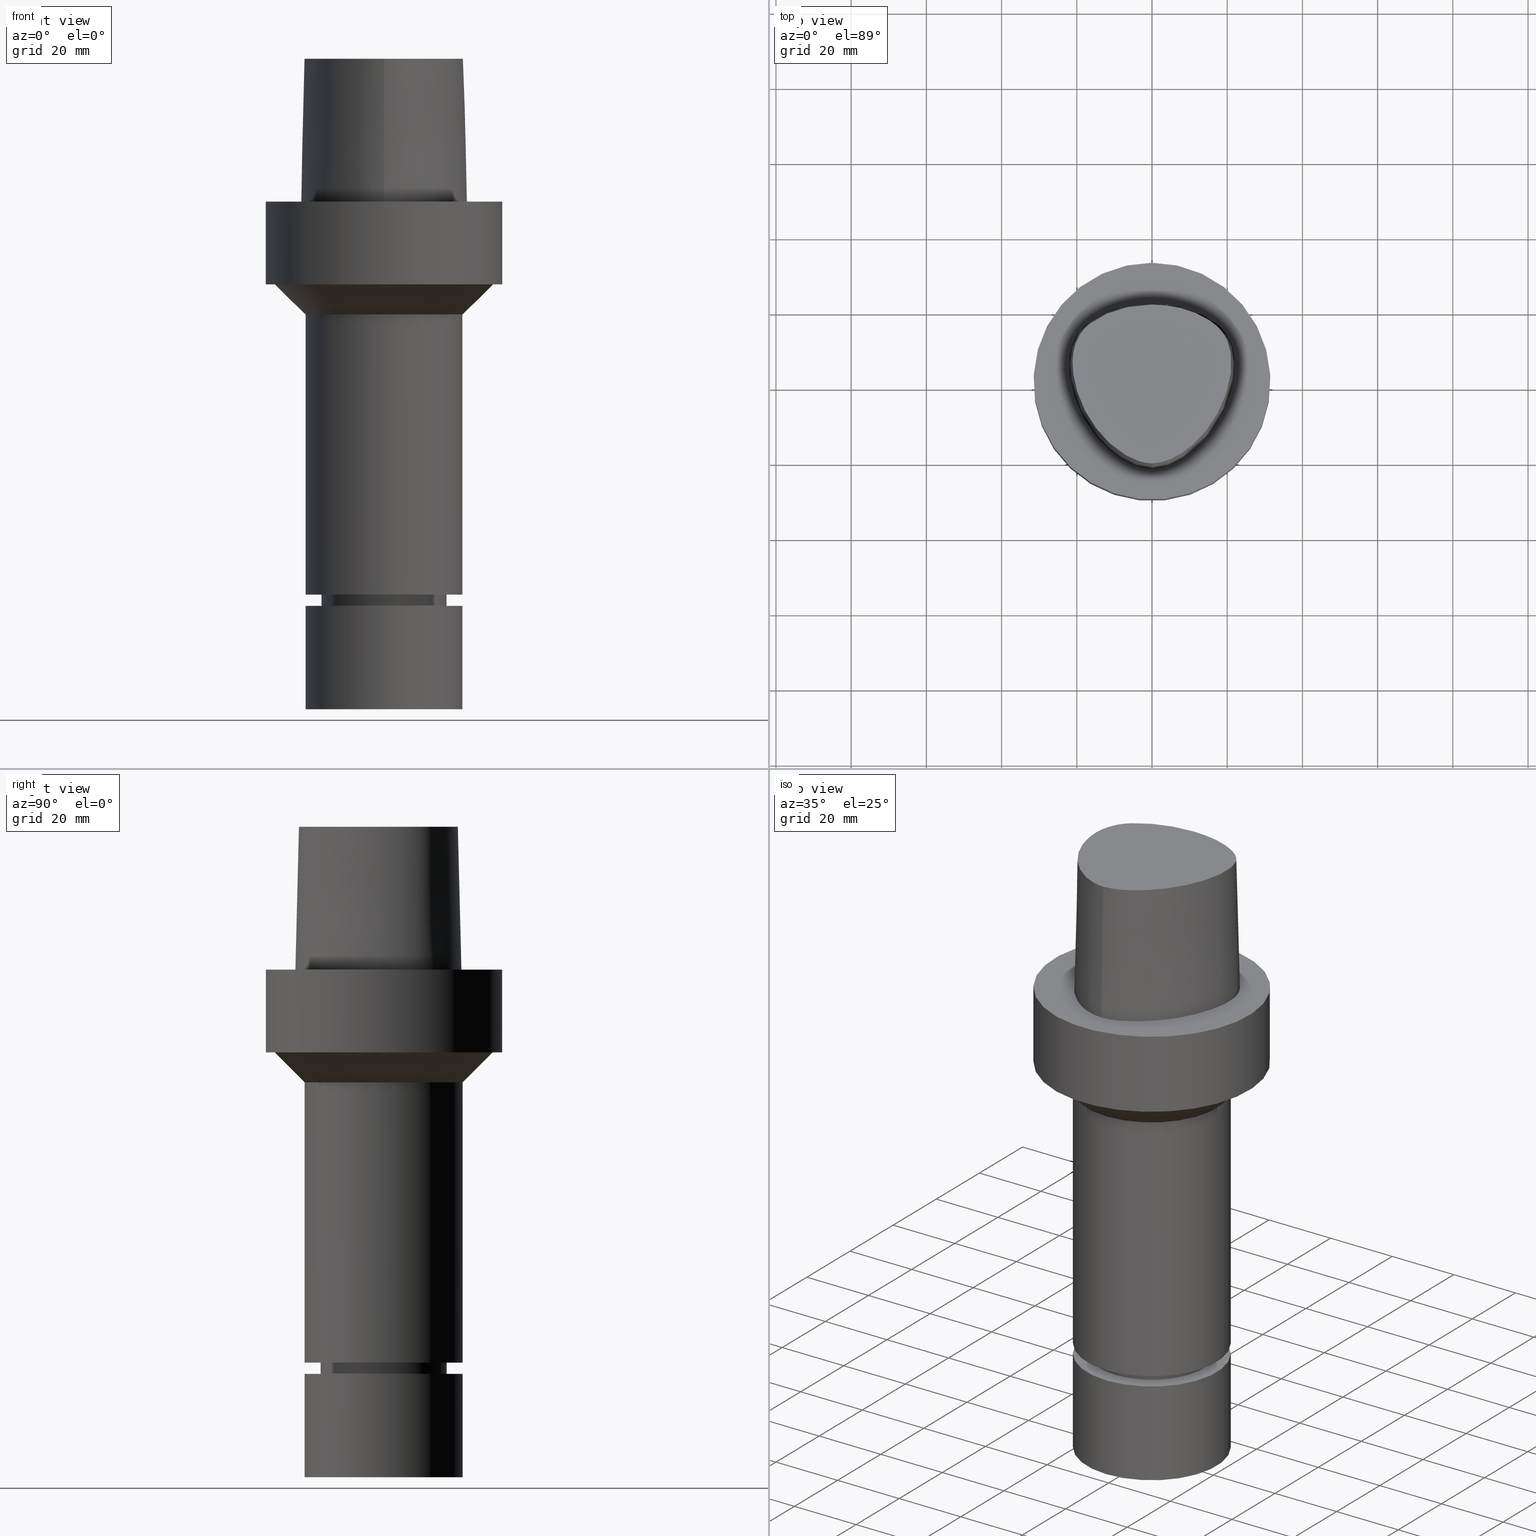
[diagram: canonical four-view strip — front | top / right | iso, engineering-drawing reading convention]
A machine part, canonical four-view strip (front | top / right | iso — engineering-drawing reading convention). The complete STEP part file that produces these views, byte-faithful:
ISO-10303-21;
HEADER;
FILE_DESCRIPTION((''),'1');
FILE_NAME('V:/90_\X2\53D65F9730C730FC30BF\X0\/00_\X2\6DE18DEF30C730FC30BF\X0\/ALL/CAPTO-BKUS\X2\52A05DE556F3\X0\_201801/C6-MEGAER/C6-MEGAER25-135NL.stp','2018-02-01T08:40:52',(''),(''),'Spatial Interop R21 SP3','Kubotek KeyCreator 2011 V10.0.2 (22737)',' ');
FILE_SCHEMA(('automotive_design'));
ENDSEC;
DATA;
#1=MECHANICAL_DESIGN_GEOMETRIC_PRESENTATION_REPRESENTATION(' ',(#14,#15,#16,#17,#18,#19,#20,#21,#22,#23,#24,#25,#26,#27,#28,#29,#30,#31,#32,#33,#34,#35,#36,#37,#38,#39,#40,#41,#42,#43,#44,#45,#46,#47,#48,#49,#50,#51,#52,#53),#10);
#2=PRODUCT_DEFINITION_CONTEXT('',#54,'design');
#3=APPLICATION_PROTOCOL_DEFINITION('INTERNATIONAL STANDARD','automotive_design',1994,#54);
#4=PRODUCT_CATEGORY_RELATIONSHIP('NONE','NONE',#55,#56);
#5=SHAPE_DEFINITION_REPRESENTATION(#57,#58);
#6=PRODUCT_DEFINITION_CONTEXT('',#59,'design');
#7=APPLICATION_PROTOCOL_DEFINITION('INTERNATIONAL STANDARD','automotive_design',1994,#59);
#8=PRODUCT_CATEGORY_RELATIONSHIP('NONE','NONE',#60,#61);
#9=SHAPE_DEFINITION_REPRESENTATION(#62,#63);
#10= (GEOMETRIC_REPRESENTATION_CONTEXT(3)GLOBAL_UNCERTAINTY_ASSIGNED_CONTEXT((#66))GLOBAL_UNIT_ASSIGNED_CONTEXT((#68,#69,#70))REPRESENTATION_CONTEXT('NONE','WORKSPACE'));
#14=STYLED_ITEM('',(#72),#73);
#15=STYLED_ITEM('',(#74),#75);
#16=STYLED_ITEM('',(#76,#77),#78);
#17=STYLED_ITEM('',(#79),#80);
#18=STYLED_ITEM('',(#81,#82),#83);
#19=STYLED_ITEM('',(#84),#85);
#20=STYLED_ITEM('',(#86,#87),#88);
#21=STYLED_ITEM('',(#89,#90),#91);
#22=STYLED_ITEM('',(#92),#93);
#23=STYLED_ITEM('',(#94,#95),#96);
#24=STYLED_ITEM('',(#97,#98),#99);
#25=STYLED_ITEM('',(#100),#101);
#26=STYLED_ITEM('',(#102,#103),#104);
#27=STYLED_ITEM('',(#105,#106),#107);
#28=STYLED_ITEM('',(#108),#109);
#29=STYLED_ITEM('',(#110),#111);
#30=STYLED_ITEM('',(#112),#113);
#31=STYLED_ITEM('',(#114,#115),#116);
#32=STYLED_ITEM('',(#117),#118);
#33=STYLED_ITEM('',(#119),#120);
#34=STYLED_ITEM('',(#121),#122);
#35=STYLED_ITEM('',(#123,#124),#125);
#36=STYLED_ITEM('',(#126,#127),#128);
#37=STYLED_ITEM('',(#129),#130);
#38=STYLED_ITEM('',(#131,#132),#133);
#39=STYLED_ITEM('',(#134,#135),#136);
#40=STYLED_ITEM('',(#137,#138),#139);
#41=STYLED_ITEM('',(#140),#141);
#42=STYLED_ITEM('',(#142,#143),#144);
#43=STYLED_ITEM('',(#145),#146);
#44=STYLED_ITEM('',(#147),#148);
#45=STYLED_ITEM('',(#149,#150),#151);
#46=STYLED_ITEM('',(#152),#153);
#47=STYLED_ITEM('',(#154,#155),#156);
#48=STYLED_ITEM('',(#157),#158);
#49=STYLED_ITEM('',(#159),#160);
#50=STYLED_ITEM('',(#161),#162);
#51=STYLED_ITEM('',(#163,#164),#165);
#52=STYLED_ITEM('',(#166,#167),#168);
#53=STYLED_ITEM('',(#169,#170),#171);
#54=APPLICATION_CONTEXT(' ');
#55=PRODUCT_CATEGORY('part','NONE');
#56=PRODUCT_RELATED_PRODUCT_CATEGORY('detail',' ',(#172));
#57=PRODUCT_DEFINITION_SHAPE('NONE','NONE',#173);
#58=ADVANCED_BREP_SHAPE_REPRESENTATION('Unnamed[1]',(#139,#174),#10);
#59=APPLICATION_CONTEXT(' ');
#60=PRODUCT_CATEGORY('part','NONE');
#61=PRODUCT_RELATED_PRODUCT_CATEGORY('detail',' ',(#175));
#62=PRODUCT_DEFINITION_SHAPE('NONE','NONE',#176);
#63=ADVANCED_BREP_SHAPE_REPRESENTATION('Unnamed[1]',(#128,#177),#10);
#66=UNCERTAINTY_MEASURE_WITH_UNIT(LENGTH_MEASURE(1.0E-006),#68,'','');
#68= (CONVERSION_BASED_UNIT('MILLIMETRE',#180)LENGTH_UNIT()NAMED_UNIT(#183));
#69= (NAMED_UNIT(#185)PLANE_ANGLE_UNIT()SI_UNIT($,.RADIAN.));
#70= (NAMED_UNIT(#185)SOLID_ANGLE_UNIT()SI_UNIT($,.STERADIAN.));
#72=PRESENTATION_STYLE_ASSIGNMENT((#191));
#73=EDGE_CURVE('Unnamed[1]',#192,#192,#193,.T.);
#74=PRESENTATION_STYLE_ASSIGNMENT((#194));
#75=EDGE_CURVE('Unnamed[1]',#195,#196,#197,.T.);
#76=PRESENTATION_STYLE_ASSIGNMENT((#198));
#77=PRESENTATION_STYLE_ASSIGNMENT((#199));
#78=ADVANCED_FACE('Unnamed[1]',(#200),#201,.T.);
#79=PRESENTATION_STYLE_ASSIGNMENT((#202));
#80=EDGE_CURVE('Unnamed[1]',#203,#204,#205,.T.);
#81=PRESENTATION_STYLE_ASSIGNMENT((#206));
#82=PRESENTATION_STYLE_ASSIGNMENT((#207));
#83=ADVANCED_FACE('Unnamed[1]',(#208),#209,.T.);
#84=PRESENTATION_STYLE_ASSIGNMENT((#210));
#85=EDGE_CURVE('Unnamed[1]',#211,#204,#212,.T.);
#86=PRESENTATION_STYLE_ASSIGNMENT((#213));
#87=PRESENTATION_STYLE_ASSIGNMENT((#214));
#88=ADVANCED_FACE('Unnamed[1]',(#215,#216),#217,.T.);
#89=PRESENTATION_STYLE_ASSIGNMENT((#218));
#90=PRESENTATION_STYLE_ASSIGNMENT((#219));
#91=ADVANCED_FACE('Unnamed[1]',(#220,#221),#222,.T.);
#92=PRESENTATION_STYLE_ASSIGNMENT((#223));
#93=EDGE_CURVE('Unnamed[1]',#224,#224,#225,.T.);
#94=PRESENTATION_STYLE_ASSIGNMENT((#226));
#95=PRESENTATION_STYLE_ASSIGNMENT((#227));
#96=ADVANCED_FACE('Unnamed[1]',(#228,#229),#230,.T.);
#97=PRESENTATION_STYLE_ASSIGNMENT((#231));
#98=PRESENTATION_STYLE_ASSIGNMENT((#232));
#99=ADVANCED_FACE('Unnamed[1]',(#233),#234,.T.);
#100=PRESENTATION_STYLE_ASSIGNMENT((#235));
#101=EDGE_CURVE('Unnamed[1]',#195,#203,#236,.T.);
#102=PRESENTATION_STYLE_ASSIGNMENT((#237));
#103=PRESENTATION_STYLE_ASSIGNMENT((#238));
#104=ADVANCED_FACE('Unnamed[1]',(#239,#240),#241,.T.);
#105=PRESENTATION_STYLE_ASSIGNMENT((#242));
#106=PRESENTATION_STYLE_ASSIGNMENT((#243));
#107=ADVANCED_FACE('Unnamed[1]',(#244,#245),#246,.T.);
#108=PRESENTATION_STYLE_ASSIGNMENT((#247));
#109=EDGE_CURVE('Unnamed[1]',#248,#248,#249,.T.);
#110=PRESENTATION_STYLE_ASSIGNMENT((#250));
#111=EDGE_CURVE('Unnamed[1]',#196,#211,#251,.T.);
#112=PRESENTATION_STYLE_ASSIGNMENT((#252));
#113=EDGE_CURVE('Unnamed[1]',#253,#253,#254,.T.);
#114=PRESENTATION_STYLE_ASSIGNMENT((#255));
#115=PRESENTATION_STYLE_ASSIGNMENT((#256));
#116=ADVANCED_FACE('Unnamed[1]',(#257,#258),#259,.T.);
#117=PRESENTATION_STYLE_ASSIGNMENT((#260));
#118=EDGE_CURVE('Unnamed[1]',#261,#261,#262,.T.);
#119=PRESENTATION_STYLE_ASSIGNMENT((#263));
#120=EDGE_CURVE('Unnamed[1]',#264,#264,#265,.T.);
#121=PRESENTATION_STYLE_ASSIGNMENT((#266));
#122=EDGE_CURVE('Unnamed[1]',#267,#267,#268,.T.);
#123=PRESENTATION_STYLE_ASSIGNMENT((#269));
#124=PRESENTATION_STYLE_ASSIGNMENT((#270));
#125=ADVANCED_FACE('Unnamed[1]',(#271,#272),#273,.T.);
#126=PRESENTATION_STYLE_ASSIGNMENT((#274));
#127=PRESENTATION_STYLE_ASSIGNMENT((#275));
#128=MANIFOLD_SOLID_BREP('Unnamed[1]',#276);
#129=PRESENTATION_STYLE_ASSIGNMENT((#277));
#130=EDGE_CURVE('Unnamed[1]',#278,#278,#279,.T.);
#131=PRESENTATION_STYLE_ASSIGNMENT((#280));
#132=PRESENTATION_STYLE_ASSIGNMENT((#281));
#133=ADVANCED_FACE('Unnamed[1]',(#282),#283,.T.);
#134=PRESENTATION_STYLE_ASSIGNMENT((#284));
#135=PRESENTATION_STYLE_ASSIGNMENT((#285));
#136=ADVANCED_FACE('Unnamed[1]',(#286,#287),#288,.T.);
#137=PRESENTATION_STYLE_ASSIGNMENT((#289));
#138=PRESENTATION_STYLE_ASSIGNMENT((#290));
#139=MANIFOLD_SOLID_BREP('Unnamed[1]',#291);
#140=PRESENTATION_STYLE_ASSIGNMENT((#292));
#141=EDGE_CURVE('Unnamed[1]',#293,#293,#294,.T.);
#142=PRESENTATION_STYLE_ASSIGNMENT((#295));
#143=PRESENTATION_STYLE_ASSIGNMENT((#296));
#144=ADVANCED_FACE('Unnamed[1]',(#297),#298,.T.);
#145=PRESENTATION_STYLE_ASSIGNMENT((#299));
#146=EDGE_CURVE('Unnamed[1]',#300,#300,#301,.T.);
#147=PRESENTATION_STYLE_ASSIGNMENT((#302));
#148=EDGE_CURVE('Unnamed[1]',#303,#303,#304,.T.);
#149=PRESENTATION_STYLE_ASSIGNMENT((#305));
#150=PRESENTATION_STYLE_ASSIGNMENT((#306));
#151=ADVANCED_FACE('Unnamed[1]',(#307,#308),#309,.T.);
#152=PRESENTATION_STYLE_ASSIGNMENT((#310));
#153=EDGE_CURVE('Unnamed[1]',#203,#211,#311,.T.);
#154=PRESENTATION_STYLE_ASSIGNMENT((#312));
#155=PRESENTATION_STYLE_ASSIGNMENT((#313));
#156=ADVANCED_FACE('Unnamed[1]',(#314,#315),#316,.T.);
#157=PRESENTATION_STYLE_ASSIGNMENT((#317));
#158=EDGE_CURVE('Unnamed[1]',#203,#195,#318,.T.);
#159=PRESENTATION_STYLE_ASSIGNMENT((#319));
#160=EDGE_CURVE('Unnamed[1]',#204,#196,#320,.T.);
#161=PRESENTATION_STYLE_ASSIGNMENT((#321));
#162=EDGE_CURVE('Unnamed[1]',#322,#322,#323,.T.);
#163=PRESENTATION_STYLE_ASSIGNMENT((#324));
#164=PRESENTATION_STYLE_ASSIGNMENT((#325));
#165=ADVANCED_FACE('Unnamed[1]',(#326),#327,.T.);
#166=PRESENTATION_STYLE_ASSIGNMENT((#328));
#167=PRESENTATION_STYLE_ASSIGNMENT((#329));
#168=ADVANCED_FACE('Unnamed[1]',(#330,#331),#332,.T.);
#169=PRESENTATION_STYLE_ASSIGNMENT((#333));
#170=PRESENTATION_STYLE_ASSIGNMENT((#334));
#171=ADVANCED_FACE('Unnamed[1]',(#335),#336,.T.);
#172=PRODUCT('Unnamed[1]','Unnamed[1]','PART-Unnamed[1]-DESC',(#337));
#173=PRODUCT_DEFINITION('NONE','NONE',#338,#2);
#174=AXIS2_PLACEMENT_3D('',#339,#340,#341);
#175=PRODUCT('Unnamed[1]','Unnamed[1]','PART-Unnamed[1]-DESC',(#342));
#176=PRODUCT_DEFINITION('NONE','NONE',#343,#6);
#177=AXIS2_PLACEMENT_3D('',#344,#345,#346);
#180=LENGTH_MEASURE_WITH_UNIT(LENGTH_MEASURE(1.0),#347);
#183=DIMENSIONAL_EXPONENTS(1.0,0.0,0.0,0.0,0.0,0.0,0.0);
#185=DIMENSIONAL_EXPONENTS(0.0,0.0,0.0,0.0,0.0,0.0,0.0);
#191=CURVE_STYLE('',#348,POSITIVE_LENGTH_MEASURE(1000.0),#349);
#192=VERTEX_POINT('',#350);
#193=CIRCLE('',#351,31.5);
#194=CURVE_STYLE('',#352,POSITIVE_LENGTH_MEASURE(1000.0),#353);
#195=VERTEX_POINT('',#354);
#196=VERTEX_POINT('',#355);
#197=LINE('',#356,#357);
#198=SURFACE_STYLE_USAGE(.BOTH.,#358);
#199=CURVE_STYLE('',#359,POSITIVE_LENGTH_MEASURE(1000.0),#360);
#200=FACE_OUTER_BOUND('',#361,.T.);
#201=B_SPLINE_SURFACE_WITH_KNOTS('',3,3,((#362,#363,#364,#365),(#366,#367,#368,#369),(#370,#371,#372,#373),(#374,#375,#376,#377),(#378,#379,#380,#381),(#382,#383,#384,#385),(#386,#387,#388,#389),(#390,#391,#392,#393),(#394,#395,#396,#397),(#398,#399,#400,#401),(#402,#403,#404,#405),(#406,#407,#408,#409),(#410,#411,#412,#413),(#414,#415,#416,#417),(#418,#419,#420,#421),(#422,#423,#424,#425),(#426,#427,#428,#429)),.UNSPECIFIED.,.F.,.F.,.F.,(4,1,1,1,1,1,1,1,1,1,1,1,1,1,4),(4,4),(-13.2302678617486,-12.816821991069,-12.4033761203893,-11.9899302497097,-11.57648437903,-11.1630385083504,-10.9563155730106,-10.7495926376707,-10.3361467669911,-9.92270089631145,-9.09580915495216,-8.26891741359287,-7.44202567223358,-7.02857980155394,-6.6151339308743),(-3.8,0.0),.UNSPECIFIED.);
#202=CURVE_STYLE('',#430,POSITIVE_LENGTH_MEASURE(1000.0),#431);
#203=VERTEX_POINT('',#432);
#204=VERTEX_POINT('',#433);
#205=LINE('',#434,#435);
#206=SURFACE_STYLE_USAGE(.BOTH.,#436);
#207=CURVE_STYLE('',#437,POSITIVE_LENGTH_MEASURE(1000.0),#438);
#208=FACE_OUTER_BOUND('',#439,.T.);
#209=CONICAL_SURFACE('',#440,1.0,0.0249931148600041);
#210=CURVE_STYLE('',#441,POSITIVE_LENGTH_MEASURE(1000.0),#442);
#211=VERTEX_POINT('',#443);
#212=CIRCLE('',#444,0.949936168436318);
#213=SURFACE_STYLE_USAGE(.BOTH.,#445);
#214=CURVE_STYLE('',#446,POSITIVE_LENGTH_MEASURE(1000.0),#447);
#215=FACE_BOUND('',#448,.T.);
#216=FACE_OUTER_BOUND('',#449,.T.);
#217=PLANE('',#450);
#218=SURFACE_STYLE_USAGE(.BOTH.,#451);
#219=CURVE_STYLE('',#452,POSITIVE_LENGTH_MEASURE(1000.0),#453);
#220=FACE_BOUND('',#454,.T.);
#221=FACE_BOUND('',#455,.T.);
#222=CYLINDRICAL_SURFACE('',#456,16.7499999999962);
#223=CURVE_STYLE('',#457,POSITIVE_LENGTH_MEASURE(1000.0),#458);
#224=VERTEX_POINT('',#459);
#225=CIRCLE('',#460,16.7499999999907);
#226=SURFACE_STYLE_USAGE(.BOTH.,#461);
#227=CURVE_STYLE('',#462,POSITIVE_LENGTH_MEASURE(1000.0),#463);
#228=FACE_BOUND('',#464,.T.);
#229=FACE_BOUND('',#465,.T.);
#230=CYLINDRICAL_SURFACE('',#466,16.0);
#231=SURFACE_STYLE_USAGE(.BOTH.,#467);
#232=CURVE_STYLE('',#468,POSITIVE_LENGTH_MEASURE(1000.0),#469);
#233=FACE_OUTER_BOUND('',#470,.T.);
#234=PLANE('',#471);
#235=CURVE_STYLE('',#472,POSITIVE_LENGTH_MEASURE(1000.0),#473);
#236=B_SPLINE_CURVE_WITH_KNOTS('',3,(#474,#475,#476,#477,#478,#479,#480,#481,#482,#483,#484,#485,#486,#487,#488,#489),.UNSPECIFIED.,.F.,.F.,(4,1,1,1,1,1,1,1,1,1,1,1,1,4),(6.61513393087476,6.99917207152274,7.48193246986995,7.96289324787093,8.45540287038584,9.10291653679981,9.67129810936083,10.1618749681153,10.6358867802489,11.1080734988593,11.6043706019633,12.09451993853,12.6985979284494,13.2302678617486),.UNSPECIFIED.);
#237=SURFACE_STYLE_USAGE(.BOTH.,#490);
#238=CURVE_STYLE('',#491,POSITIVE_LENGTH_MEASURE(1000.0),#492);
#239=FACE_BOUND('',#493,.T.);
#240=FACE_BOUND('',#494,.T.);
#241=CYLINDRICAL_SURFACE('',#495,21.0000000000002);
#242=SURFACE_STYLE_USAGE(.BOTH.,#496);
#243=CURVE_STYLE('',#497,POSITIVE_LENGTH_MEASURE(1000.0),#498);
#244=FACE_BOUND('',#499,.T.);
#245=FACE_BOUND('',#500,.T.);
#246=CYLINDRICAL_SURFACE('',#501,31.5);
#247=CURVE_STYLE('',#502,POSITIVE_LENGTH_MEASURE(1000.0),#503);
#248=VERTEX_POINT('',#504);
#249=CIRCLE('',#505,31.5);
#250=CURVE_STYLE('',#506,POSITIVE_LENGTH_MEASURE(1000.0),#507);
#251=B_SPLINE_CURVE_WITH_KNOTS('',3,(#508,#509,#510,#511,#512,#513,#514,#515,#516,#517,#518,#519,#520,#521,#522,#523,#524,#525),.UNSPECIFIED.,.F.,.F.,(4,1,1,1,1,1,1,1,1,2,1,1,1,1,4),(-6.6151339308743,-6.20168806019465,-5.78824218951501,-5.37479631883537,-4.96135044815572,-4.13445870679644,-3.30756696543715,-2.89412109475751,-2.48067522407786,-2.06722935339822,-1.65378348271857,-1.24033761203893,-0.826891741359287,-0.413445870679644,0.0),.UNSPECIFIED.);
#252=CURVE_STYLE('',#526,POSITIVE_LENGTH_MEASURE(1000.0),#527);
#253=VERTEX_POINT('',#528);
#254=CIRCLE('',#529,21.0000000000003);
#255=SURFACE_STYLE_USAGE(.BOTH.,#530);
#256=CURVE_STYLE('',#531,POSITIVE_LENGTH_MEASURE(1000.0),#532);
#257=FACE_BOUND('',#533,.T.);
#258=FACE_BOUND('',#534,.T.);
#259=CONICAL_SURFACE('',#535,25.0000000000003,0.785398163397453);
#260=CURVE_STYLE('',#536,POSITIVE_LENGTH_MEASURE(1000.0),#537);
#261=VERTEX_POINT('',#538);
#262=CIRCLE('',#539,16.0);
#263=CURVE_STYLE('',#540,POSITIVE_LENGTH_MEASURE(1000.0),#541);
#264=VERTEX_POINT('',#542);
#265=CIRCLE('',#543,21.0);
#266=CURVE_STYLE('',#544,POSITIVE_LENGTH_MEASURE(1000.0),#545);
#267=VERTEX_POINT('',#546);
#268=CIRCLE('',#547,21.0);
#269=SURFACE_STYLE_USAGE(.BOTH.,#548);
#270=CURVE_STYLE('',#549,POSITIVE_LENGTH_MEASURE(1000.0),#550);
#271=FACE_BOUND('',#551,.T.);
#272=FACE_OUTER_BOUND('',#552,.T.);
#273=PLANE('',#553);
#274=SURFACE_STYLE_USAGE(.BOTH.,#554);
#275=CURVE_STYLE('',#555,POSITIVE_LENGTH_MEASURE(1000.0),#556);
#276=CLOSED_SHELL('',(#165,#171,#168));
#277=CURVE_STYLE('',#557,POSITIVE_LENGTH_MEASURE(1000.0),#558);
#278=VERTEX_POINT('',#559);
#279=CIRCLE('',#560,14.9000000000006);
#280=SURFACE_STYLE_USAGE(.BOTH.,#561);
#281=CURVE_STYLE('',#562,POSITIVE_LENGTH_MEASURE(1000.0),#563);
#282=FACE_OUTER_BOUND('',#564,.T.);
#283=B_SPLINE_SURFACE_WITH_KNOTS('',3,3,((#565,#566,#567,#568),(#569,#570,#571,#572),(#573,#574,#575,#576),(#577,#578,#579,#580),(#581,#582,#583,#584),(#585,#586,#587,#588),(#589,#590,#591,#592),(#593,#594,#595,#596),(#597,#598,#599,#600),(#601,#602,#603,#604),(#605,#606,#607,#608),(#609,#610,#611,#612),(#613,#614,#615,#616),(#617,#618,#619,#620),(#621,#622,#623,#624),(#625,#626,#627,#628),(#629,#630,#631,#632),(#633,#634,#635,#636)),.UNSPECIFIED.,.F.,.F.,.F.,(4,1,1,1,1,1,1,1,1,2,1,1,1,1,4),(4,4),(-6.6151339308743,-6.20168806019465,-5.78824218951501,-5.37479631883537,-4.96135044815572,-4.13445870679644,-3.30756696543715,-2.89412109475751,-2.48067522407786,-2.06722935339822,-1.65378348271857,-1.24033761203893,-0.826891741359287,-0.413445870679644,0.0),(-3.8,0.0),.UNSPECIFIED.);
#284=SURFACE_STYLE_USAGE(.BOTH.,#637);
#285=CURVE_STYLE('',#638,POSITIVE_LENGTH_MEASURE(1000.0),#639);
#286=FACE_BOUND('',#640,.T.);
#287=FACE_BOUND('',#641,.T.);
#288=CONICAL_SURFACE('',#642,16.3750000000008,1.04719755120057);
#289=SURFACE_STYLE_USAGE(.BOTH.,#643);
#290=CURVE_STYLE('',#644,POSITIVE_LENGTH_MEASURE(1000.0),#645);
#291=CLOSED_SHELL('',(#78,#133,#83,#99,#151,#107,#125,#116,#104,#88,#91,#136,#96,#156,#144));
#292=CURVE_STYLE('',#646,POSITIVE_LENGTH_MEASURE(1000.0),#647);
#293=VERTEX_POINT('',#648);
#294=CIRCLE('',#649,16.0);
#295=SURFACE_STYLE_USAGE(.BOTH.,#650);
#296=CURVE_STYLE('',#651,POSITIVE_LENGTH_MEASURE(1000.0),#652);
#297=FACE_OUTER_BOUND('',#653,.T.);
#298=PLANE('',#654);
#299=CURVE_STYLE('',#655,POSITIVE_LENGTH_MEASURE(1000.0),#656);
#300=VERTEX_POINT('',#657);
#301=CIRCLE('',#658,29.0000000000003);
#302=CURVE_STYLE('',#659,POSITIVE_LENGTH_MEASURE(1000.0),#660);
#303=VERTEX_POINT('',#661);
#304=CIRCLE('',#662,21.0000000000001);
#305=SURFACE_STYLE_USAGE(.BOTH.,#663);
#306=CURVE_STYLE('',#664,POSITIVE_LENGTH_MEASURE(1000.0),#665);
#307=FACE_BOUND('',#666,.T.);
#308=FACE_OUTER_BOUND('',#667,.T.);
#309=PLANE('',#668);
#310=CURVE_STYLE('',#669,POSITIVE_LENGTH_MEASURE(1000.0),#670);
#311=LINE('',#671,#672);
#312=SURFACE_STYLE_USAGE(.BOTH.,#673);
#313=CURVE_STYLE('',#674,POSITIVE_LENGTH_MEASURE(1000.0),#675);
#314=FACE_BOUND('',#676,.T.);
#315=FACE_BOUND('',#677,.T.);
#316=CONICAL_SURFACE('',#678,15.4500000000003,0.523598775598066);
#317=CURVE_STYLE('',#679,POSITIVE_LENGTH_MEASURE(1000.0),#680);
#318=B_SPLINE_CURVE_WITH_KNOTS('',3,(#681,#682,#683,#684,#685,#686,#687,#688,#689,#690,#691,#692,#693,#694,#695,#696),.UNSPECIFIED.,.F.,.F.,(4,1,1,1,1,1,1,1,1,1,1,1,1,4),(0.0,0.447924670568964,0.9388024242536,1.50591409090711,2.07314340012323,2.72424957442464,3.2253501842849,3.80982102049476,4.34867996267067,4.85900173381144,5.37972031856977,6.03459825488646,6.61113557741484,6.61513393087395),.UNSPECIFIED.);
#319=CURVE_STYLE('',#697,POSITIVE_LENGTH_MEASURE(1000.0),#698);
#320=B_SPLINE_CURVE_WITH_KNOTS('',3,(#699,#700,#701,#702,#703,#704,#705,#706,#707,#708,#709,#710,#711,#712,#713,#714,#715),.UNSPECIFIED.,.F.,.F.,(4,1,1,1,1,1,1,1,1,1,1,1,1,1,4),(-13.2302678617486,-12.816821991069,-12.4033761203893,-11.9899302497097,-11.57648437903,-11.1630385083504,-10.9563155730106,-10.7495926376707,-10.3361467669911,-9.92270089631145,-9.09580915495216,-8.26891741359287,-7.44202567223358,-7.02857980155394,-6.6151339308743),.UNSPECIFIED.);
#321=CURVE_STYLE('',#716,POSITIVE_LENGTH_MEASURE(1000.0),#717);
#322=VERTEX_POINT('',#718);
#323=CIRCLE('',#719,16.7500000000017);
#324=SURFACE_STYLE_USAGE(.BOTH.,#720);
#325=CURVE_STYLE('',#721,POSITIVE_LENGTH_MEASURE(1000.0),#722);
#326=FACE_OUTER_BOUND('',#723,.T.);
#327=PLANE('',#724);
#328=SURFACE_STYLE_USAGE(.BOTH.,#725);
#329=CURVE_STYLE('',#726,POSITIVE_LENGTH_MEASURE(1000.0),#727);
#330=FACE_BOUND('',#728,.T.);
#331=FACE_BOUND('',#729,.T.);
#332=CYLINDRICAL_SURFACE('',#730,21.0);
#333=SURFACE_STYLE_USAGE(.BOTH.,#731);
#334=CURVE_STYLE('',#732,POSITIVE_LENGTH_MEASURE(1000.0),#733);
#335=FACE_OUTER_BOUND('',#734,.T.);
#336=PLANE('',#735);
#337=PRODUCT_CONTEXT('',#54,'mechanical');
#338=PRODUCT_DEFINITION_FORMATION_WITH_SPECIFIED_SOURCE(' ','NONE',#172,.NOT_KNOWN.);
#339=CARTESIAN_POINT('',(0.0,0.0,0.0));
#340=DIRECTION('',(0.0,0.0,1.0));
#341=DIRECTION('',(1.0,0.0,0.0));
#342=PRODUCT_CONTEXT('',#59,'mechanical');
#343=PRODUCT_DEFINITION_FORMATION_WITH_SPECIFIED_SOURCE(' ','NONE',#175,.NOT_KNOWN.);
#344=CARTESIAN_POINT('',(0.0,0.0,0.0));
#345=DIRECTION('',(0.0,0.0,1.0));
#346=DIRECTION('',(1.0,0.0,0.0));
#347= (NAMED_UNIT(#183)LENGTH_UNIT()SI_UNIT(.MILLI.,.METRE.));
#348=DRAUGHTING_PRE_DEFINED_CURVE_FONT('continuous');
#349=COLOUR_RGB('',0.0,1.0,0.0);
#350=CARTESIAN_POINT('',(-3.88267476788467E-031,31.5,3.85763741731416E-015));
#351=AXIS2_PLACEMENT_3D('',#737,#738,#739);
#352=DRAUGHTING_PRE_DEFINED_CURVE_FONT('continuous');
#353=COLOUR_RGB('',0.0,1.0,0.0);
#354=CARTESIAN_POINT('',(0.038736923393866,-22.5191997536361,38.0));
#355=CARTESIAN_POINT('',(0.04359356758149,-23.4691235068931,7.78075697532443E-032));
#356=CARTESIAN_POINT('',(0.038736923393866,-22.5191997536361,38.0));
#357=VECTOR('',#740,38.0118715498723);
#358=SURFACE_SIDE_STYLE('',(#741));
#359=DRAUGHTING_PRE_DEFINED_CURVE_FONT('continuous');
#360=COLOUR_RGB('',0.0,1.0,0.0);
#361=EDGE_LOOP('',(#742,#743,#744,#745));
#362=CARTESIAN_POINT('',(-0.001218367817519,19.7276822012873,38.0));
#363=CARTESIAN_POINT('',(0.014082083248157,20.0439577123075,25.3333333333066));
#364=CARTESIAN_POINT('',(0.029382534313671,20.3602332232908,12.6666666666934));
#365=CARTESIAN_POINT('',(0.044682985379347,20.6765087343109,1.61778115328528E-031));
#366=CARTESIAN_POINT('',(1.37788651195108,19.6609652834875,38.0));
#367=CARTESIAN_POINT('',(1.3931885827258,19.9772407169847,25.3333333333066));
#368=CARTESIAN_POINT('',(1.40849065356095,20.2935162254648,12.6666666666934));
#369=CARTESIAN_POINT('',(1.42379272427753,20.6097915814392,8.62816615085482E-032));
#370=CARTESIAN_POINT('',(4.135446440878,19.5347778787784,38.0));
#371=CARTESIAN_POINT('',(4.16466278851883,19.8511031866125,25.3333333333066));
#372=CARTESIAN_POINT('',(4.1938791526746,20.1674284644204,12.6666666666934));
#373=CARTESIAN_POINT('',(4.2230955003445,20.4837538303966,1.4791141972894E-031));
#374=CARTESIAN_POINT('',(8.213607363795,18.7706026638736,38.0));
#375=CARTESIAN_POINT('',(8.29980745008421,19.0767495109635,25.3333333333066));
#376=CARTESIAN_POINT('',(8.38600751285747,19.3828964329996,12.6666666666934));
#377=CARTESIAN_POINT('',(8.47220762821777,19.6890432607088,9.86076131526265E-032));
#378=CARTESIAN_POINT('',(12.1316338645671,17.3698624840857,38.0));
#379=CARTESIAN_POINT('',(12.2591308270381,17.6610739397708,25.3333333333066));
#380=CARTESIAN_POINT('',(12.3866278083543,17.9522853923553,12.6666666666934));
#381=CARTESIAN_POINT('',(12.5141247708253,18.2434968480404,0.0));
#382=CARTESIAN_POINT('',(15.7706546153679,15.3789501349612,38.0));
#383=CARTESIAN_POINT('',(15.9483905900895,15.6437731794811,25.3333333333066));
#384=CARTESIAN_POINT('',(16.1261265513272,15.9085961736944,12.6666666666934));
#385=CARTESIAN_POINT('',(16.3038624872874,16.1734192182143,1.97215226305253E-031));
#386=CARTESIAN_POINT('',(18.4265894256284,13.0570022172893,38.0));
#387=CARTESIAN_POINT('',(18.6659567517146,13.2725589420689,25.3333333333066));
#388=CARTESIAN_POINT('',(18.9053240921419,13.4881156488541,12.6666666666934));
#389=CARTESIAN_POINT('',(19.1446913988473,13.7036723639434,-1.97215226305253E-031));
#390=CARTESIAN_POINT('',(19.8679958653038,10.6923771981998,38.0));
#391=CARTESIAN_POINT('',(20.1559937048299,10.8287388264873,25.3333333333066));
#392=CARTESIAN_POINT('',(20.4439915656177,10.965100461641,12.6666666666934));
#393=CARTESIAN_POINT('',(20.7319894342149,11.1014620996188,0.0));
#394=CARTESIAN_POINT('',(20.8470867582337,8.07149548576131,38.0));
#395=CARTESIAN_POINT('',(21.1591164072431,8.14132775555392,25.3333333333066));
#396=CARTESIAN_POINT('',(21.4711459821861,8.21116003697855,12.6666666666934));
#397=CARTESIAN_POINT('',(21.7831756505763,8.28099229708081,-1.97215226305253E-031));
#398=CARTESIAN_POINT('',(21.2693244256982,4.61157245650171,38.0));
#399=CARTESIAN_POINT('',(21.5881576801997,4.6105997689982,25.3333333333066));
#400=CARTESIAN_POINT('',(21.9069908544037,4.60962709346857,12.6666666666934));
#401=CARTESIAN_POINT('',(22.2258240701438,4.60865440596506,0.0));
#402=CARTESIAN_POINT('',(20.8071610855575,-0.912828649855193,38.0));
#403=CARTESIAN_POINT('',(21.119311671178,-0.979640884839481,25.3333333333066));
#404=CARTESIAN_POINT('',(21.4314624224461,-1.04645306732201,12.6666666666934));
#405=CARTESIAN_POINT('',(21.7436130080666,-1.11326526354485,0.0));
#406=CARTESIAN_POINT('',(18.6841935581315,-7.54428794252837,38.0));
#407=CARTESIAN_POINT('',(18.9734452551861,-7.6809665891091,25.3333333333066));
#408=CARTESIAN_POINT('',(19.2626970689956,-7.81764505382656,12.6666666666934));
#409=CARTESIAN_POINT('',(19.5519487660502,-7.95432366164584,0.0));
#410=CARTESIAN_POINT('',(14.2175552814,-14.5971504342323,38.0));
#411=CARTESIAN_POINT('',(14.4641757465198,-14.8010930946929,25.3333333333066));
#412=CARTESIAN_POINT('',(14.710796247264,-15.0050359737917,12.6666666666934));
#413=CARTESIAN_POINT('',(14.9574167123838,-15.2089785567293,0.0));
#414=CARTESIAN_POINT('',(9.0844808732933,-19.3179298129689,38.0));
#415=CARTESIAN_POINT('',(9.27912152349017,-19.572866915557,25.3333333333066));
#416=CARTESIAN_POINT('',(9.47376218971294,-19.827804295621,12.6666666666934));
#417=CARTESIAN_POINT('',(9.66840283021945,-20.0827414369705,-9.86076131526265E-032));
#418=CARTESIAN_POINT('',(4.17112919194182,-21.8987568152736,38.0));
#419=CARTESIAN_POINT('',(4.28618163483998,-22.1973837173649,25.3333333333066));
#420=CARTESIAN_POINT('',(4.40123406239433,-22.4960105163661,12.6666666666934));
#421=CARTESIAN_POINT('',(4.51628650521788,-22.7946374572188,-9.86076131526265E-032));
#422=CARTESIAN_POINT('',(1.41533654381097,-22.5120888467812,38.0));
#423=CARTESIAN_POINT('',(1.46311520162011,-22.8284916374445,25.3333333333066));
#424=CARTESIAN_POINT('',(1.51089385942236,-23.144894486341,12.6666666666934));
#425=CARTESIAN_POINT('',(1.55867251738073,-23.4612972770043,-1.23259516440783E-032));
#426=CARTESIAN_POINT('',(0.038736923393866,-22.5191997536361,38.0));
#427=CARTESIAN_POINT('',(0.04035580478973,-22.8358410047159,25.3333333333066));
#428=CARTESIAN_POINT('',(0.041974686185626,-23.1524822558133,12.6666666666934));
#429=CARTESIAN_POINT('',(0.04359356758149,-23.4691235068931,7.78075697532443E-032));
#430=DRAUGHTING_PRE_DEFINED_CURVE_FONT('continuous');
#431=COLOUR_RGB('',0.0,1.0,0.0);
#432=CARTESIAN_POINT('',(-0.001218547003662,19.7276821925089,38.0));
#433=CARTESIAN_POINT('',(0.044682985379347,20.6765087343109,1.61778115328528E-031));
#434=CARTESIAN_POINT('',(-0.001218547003662,19.7276821925089,38.0));
#435=VECTOR('',#746,38.0118715503078);
#436=SURFACE_SIDE_STYLE('',(#747));
#437=DRAUGHTING_PRE_DEFINED_CURVE_FONT('continuous');
#438=COLOUR_RGB('',0.0,1.0,0.0);
#439=EDGE_LOOP('',(#748,#749,#750));
#440=AXIS2_PLACEMENT_3D('',#751,#752,#753);
#441=DRAUGHTING_PRE_DEFINED_CURVE_FONT('continuous');
#442=COLOUR_RGB('',0.0,1.0,0.0);
#443=CARTESIAN_POINT('',(-0.045171994691285,20.6766009553285,1.6755590516169E-031));
#444=AXIS2_PLACEMENT_3D('',#754,#755,#756);
#445=SURFACE_SIDE_STYLE('',(#757));
#446=DRAUGHTING_PRE_DEFINED_CURVE_FONT('continuous');
#447=COLOUR_RGB('',0.0,1.0,0.0);
#448=EDGE_LOOP('',(#758));
#449=EDGE_LOOP('',(#759));
#450=AXIS2_PLACEMENT_3D('',#760,#761,#762);
#451=SURFACE_SIDE_STYLE('',(#763));
#452=DRAUGHTING_PRE_DEFINED_CURVE_FONT('continuous');
#453=COLOUR_RGB('',0.0,1.0,0.0);
#454=EDGE_LOOP('',(#764));
#455=EDGE_LOOP('',(#765));
#456=AXIS2_PLACEMENT_3D('',#766,#767,#768);
#457=DRAUGHTING_PRE_DEFINED_CURVE_FONT('continuous');
#458=COLOUR_RGB('',0.0,1.0,0.0);
#459=CARTESIAN_POINT('',(6.39877952554487E-015,16.7499999999907,-104.499999999999));
#460=AXIS2_PLACEMENT_3D('',#769,#770,#771);
#461=SURFACE_SIDE_STYLE('',(#772));
#462=DRAUGHTING_PRE_DEFINED_CURVE_FONT('continuous');
#463=COLOUR_RGB('',0.0,1.0,0.0);
#464=EDGE_LOOP('',(#773));
#465=EDGE_LOOP('',(#774));
#466=AXIS2_PLACEMENT_3D('',#775,#776,#777);
#467=SURFACE_SIDE_STYLE('',(#778));
#468=DRAUGHTING_PRE_DEFINED_CURVE_FONT('continuous');
#469=COLOUR_RGB('',0.0,1.0,0.0);
#470=EDGE_LOOP('',(#779,#780));
#471=AXIS2_PLACEMENT_3D('',#781,#782,#783);
#472=DRAUGHTING_PRE_DEFINED_CURVE_FONT('continuous');
#473=COLOUR_RGB('',0.0,1.0,0.0);
#474=CARTESIAN_POINT('',(0.038736923394311,-22.519199753636,38.0));
#475=CARTESIAN_POINT('',(1.31742058183662,-22.512662269405,38.0));
#476=CARTESIAN_POINT('',(4.2093773447498,-21.9116226439989,38.0));
#477=CARTESIAN_POINT('',(8.20895504542113,-19.7798683845067,38.0));
#478=CARTESIAN_POINT('',(11.9784633234593,-16.681663904162,38.0));
#479=CARTESIAN_POINT('',(15.5308821579362,-12.5807487594113,38.0));
#480=CARTESIAN_POINT('',(18.4566248438667,-7.64932246015528,38.0));
#481=CARTESIAN_POINT('',(20.4036090752029,-2.27012499825289,38.0));
#482=CARTESIAN_POINT('',(21.2357187429189,2.79891401173156,38.0));
#483=CARTESIAN_POINT('',(21.0811206267748,7.62543090736657,38.0));
#484=CARTESIAN_POINT('',(19.3383577336563,12.2772250726194,38.0));
#485=CARTESIAN_POINT('',(15.5796322014404,15.5799672120682,38.0));
#486=CARTESIAN_POINT('',(10.8392956074438,17.9834601687347,38.0));
#487=CARTESIAN_POINT('',(5.56068045850571,19.4586143858472,38.0));
#488=CARTESIAN_POINT('',(1.77223893711014,19.6418877095654,38.0));
#489=CARTESIAN_POINT('',(-0.001218367817519,19.7276822012873,38.0));
#490=SURFACE_SIDE_STYLE('',(#784));
#491=DRAUGHTING_PRE_DEFINED_CURVE_FONT('continuous');
#492=COLOUR_RGB('',0.0,1.0,0.0);
#493=EDGE_LOOP('',(#785));
#494=EDGE_LOOP('',(#786));
#495=AXIS2_PLACEMENT_3D('',#787,#788,#789);
#496=SURFACE_SIDE_STYLE('',(#790));
#497=DRAUGHTING_PRE_DEFINED_CURVE_FONT('continuous');
#498=COLOUR_RGB('',0.0,1.0,0.0);
#499=EDGE_LOOP('',(#791));
#500=EDGE_LOOP('',(#792));
#501=AXIS2_PLACEMENT_3D('',#793,#794,#795);
#502=DRAUGHTING_PRE_DEFINED_CURVE_FONT('continuous');
#503=COLOUR_RGB('',0.0,1.0,0.0);
#504=CARTESIAN_POINT('',(1.34711147906212E-015,31.5,-22.0000000000006));
#505=AXIS2_PLACEMENT_3D('',#796,#797,#798);
#506=DRAUGHTING_PRE_DEFINED_CURVE_FONT('continuous');
#507=COLOUR_RGB('',0.0,1.0,0.0);
#508=CARTESIAN_POINT('',(0.04359356758149,-23.4691235068931,7.78075697532443E-032));
#509=CARTESIAN_POINT('',(-1.4714994713963,-23.4767895315797,2.46519032881566E-032));
#510=CARTESIAN_POINT('',(-4.43923476371401,-22.821149804767,-4.93038065763132E-032));
#511=CARTESIAN_POINT('',(-8.35043230079961,-20.8000751253325,-9.86076131526265E-032));
#512=CARTESIAN_POINT('',(-11.744900222602,-18.1556117874078,-1.97215226305253E-031));
#513=CARTESIAN_POINT('',(-15.6989602501314,-14.0406306929147,-1.97215226305253E-031));
#514=CARTESIAN_POINT('',(-19.5352875070682,-8.00624990770787,1.97215226305253E-031));
#515=CARTESIAN_POINT('',(-21.7205626190491,-1.16081708945282,0.0));
#516=CARTESIAN_POINT('',(-22.2486616783342,4.54965558738736,0.0));
#517=CARTESIAN_POINT('',(-21.6646421256468,9.00229539124618,0.0));
#518=CARTESIAN_POINT('',(-20.3945635471922,11.7780544971003,0.0));
#519=CARTESIAN_POINT('',(-18.5925528034471,14.1980602922581,0.0));
#520=CARTESIAN_POINT('',(-16.3226584122258,16.1777748720707,0.0));
#521=CARTESIAN_POINT('',(-12.5076407874579,18.2524201541303,9.86076131526265E-032));
#522=CARTESIAN_POINT('',(-8.46776192107786,19.679114377952,9.86076131526265E-032));
#523=CARTESIAN_POINT('',(-4.23043497193604,20.487781597334,1.97215226305253E-031));
#524=CARTESIAN_POINT('',(-1.42313094248379,20.6127745766442,1.10933564796705E-031));
#525=CARTESIAN_POINT('',(-0.045171994691285,20.6766009553285,1.6755590516169E-031));
#526=DRAUGHTING_PRE_DEFINED_CURVE_FONT('continuous');
#527=COLOUR_RGB('',0.0,1.0,0.0);
#528=CARTESIAN_POINT('',(1.83697019872106E-015,21.0000000000003,-30.0000000000005));
#529=AXIS2_PLACEMENT_3D('',#799,#800,#801);
#530=SURFACE_SIDE_STYLE('',(#802));
#531=DRAUGHTING_PRE_DEFINED_CURVE_FONT('continuous');
#532=COLOUR_RGB('',0.0,1.0,0.0);
#533=EDGE_LOOP('',(#803));
#534=EDGE_LOOP('',(#804));
#535=AXIS2_PLACEMENT_3D('',#805,#806,#807);
#536=DRAUGHTING_PRE_DEFINED_CURVE_FONT('continuous');
#537=COLOUR_RGB('',0.0,1.0,0.0);
#538=CARTESIAN_POINT('',(6.79068717130714E-015,16.0,-110.90033756729));
#539=AXIS2_PLACEMENT_3D('',#808,#809,#810);
#540=DRAUGHTING_PRE_DEFINED_CURVE_FONT('continuous');
#541=COLOUR_RGB('',0.0,1.0,0.0);
#542=CARTESIAN_POINT('',(8.26636589424463E-015,21.0,-135.0));
#543=AXIS2_PLACEMENT_3D('',#811,#812,#813);
#544=DRAUGHTING_PRE_DEFINED_CURVE_FONT('continuous');
#545=COLOUR_RGB('',0.0,1.0,0.0);
#546=CARTESIAN_POINT('',(6.58247654541702E-015,21.0,-107.5));
#547=AXIS2_PLACEMENT_3D('',#814,#815,#816);
#548=SURFACE_SIDE_STYLE('',(#817));
#549=DRAUGHTING_PRE_DEFINED_CURVE_FONT('continuous');
#550=COLOUR_RGB('',0.0,1.0,0.0);
#551=EDGE_LOOP('',(#818));
#552=EDGE_LOOP('',(#819));
#553=AXIS2_PLACEMENT_3D('',#820,#821,#822);
#554=SURFACE_SIDE_STYLE('',(#823));
#555=DRAUGHTING_PRE_DEFINED_CURVE_FONT('continuous');
#556=COLOUR_RGB('',0.0,1.0,0.0);
#557=DRAUGHTING_PRE_DEFINED_CURVE_FONT('continuous');
#558=COLOUR_RGB('',0.0,1.0,0.0);
#559=CARTESIAN_POINT('',(7.64179602667949E-015,14.9000000000007,-124.8));
#560=AXIS2_PLACEMENT_3D('',#824,#825,#826);
#561=SURFACE_SIDE_STYLE('',(#827));
#562=DRAUGHTING_PRE_DEFINED_CURVE_FONT('continuous');
#563=COLOUR_RGB('',0.0,1.0,0.0);
#564=EDGE_LOOP('',(#828,#829,#830,#831));
#565=CARTESIAN_POINT('',(0.038736923393866,-22.5191997536361,38.0));
#566=CARTESIAN_POINT('',(0.04035580478973,-22.8358410047159,25.3333333333066));
#567=CARTESIAN_POINT('',(0.041974686185626,-23.1524822558133,12.6666666666934));
#568=CARTESIAN_POINT('',(0.04359356758149,-23.4691235068931,7.78075697532443E-032));
#569=CARTESIAN_POINT('',(-1.33786123484754,-22.5261650259856,38.0));
#570=CARTESIAN_POINT('',(-1.38240731367927,-22.8430399310626,25.3333333333066));
#571=CARTESIAN_POINT('',(-1.42695339249092,-23.1599147815484,12.6666666666934));
#572=CARTESIAN_POINT('',(-1.4714994713963,-23.4767895315797,2.46519032881566E-032));
#573=CARTESIAN_POINT('',(-4.08909358431842,-21.9268839879558,38.0));
#574=CARTESIAN_POINT('',(-4.20580731135515,-22.2249725500078,25.3333333333066));
#575=CARTESIAN_POINT('',(-4.32252104640446,-22.5230611651922,12.6666666666934));
#576=CARTESIAN_POINT('',(-4.43923476371401,-22.821149804767,-4.93038065763132E-032));
#577=CARTESIAN_POINT('',(-7.8333083619947,-19.9973514861616,38.0));
#578=CARTESIAN_POINT('',(-8.00568301809614,-20.2649260859405,25.3333333333066));
#579=CARTESIAN_POINT('',(-8.1780576640789,-20.532500564315,12.6666666666934));
#580=CARTESIAN_POINT('',(-8.35043230079961,-20.8000751253325,-9.86076131526265E-032));
#581=CARTESIAN_POINT('',(-11.1035071147626,-17.450554957873,38.0));
#582=CARTESIAN_POINT('',(-11.3173048160562,-17.6855739222454,25.3333333333066));
#583=CARTESIAN_POINT('',(-11.5311025116181,-17.9205928617968,12.6666666666934));
#584=CARTESIAN_POINT('',(-11.744900222602,-18.1556117874078,-1.97215226305253E-031));
#585=CARTESIAN_POINT('',(-14.9379535189057,-13.461132049697,38.0));
#586=CARTESIAN_POINT('',(-15.191622410671,-13.6542981711372,25.3333333333066));
#587=CARTESIAN_POINT('',(-15.4452913389853,-13.8474645327131,12.6666666666934));
#588=CARTESIAN_POINT('',(-15.6989602501314,-14.0406306929147,-1.97215226305253E-031));
#589=CARTESIAN_POINT('',(-18.6681263017223,-7.59391757463204,38.0));
#590=CARTESIAN_POINT('',(-18.9571800800711,-7.73136168081928,25.3333333333066));
#591=CARTESIAN_POINT('',(-19.2462337287194,-7.86880572399774,12.6666666666934));
#592=CARTESIAN_POINT('',(-19.5352875070682,-8.00624990770787,1.97215226305253E-031));
#593=CARTESIAN_POINT('',(-20.7857899858339,-0.952862819790525,38.0));
#594=CARTESIAN_POINT('',(-21.0973808305434,-1.02218087467418,25.3333333333066));
#595=CARTESIAN_POINT('',(-21.408971677436,-1.09149899580772,12.6666666666934));
#596=CARTESIAN_POINT('',(-21.7205626190491,-1.16081708945282,0.0));
#597=CARTESIAN_POINT('',(-21.2911760556836,4.5469215763113,38.0));
#598=CARTESIAN_POINT('',(-21.610337904926,4.54783292082248,25.3333333333066));
#599=CARTESIAN_POINT('',(-21.9294998290918,4.54874426225691,12.6666666666934));
#600=CARTESIAN_POINT('',(-22.2486616783342,4.54965558738736,0.0));
#601=CARTESIAN_POINT('',(-20.7345309521958,8.74909381391006,38.0));
#602=CARTESIAN_POINT('',(-21.0445680426217,8.83349432450556,25.3333333333066));
#603=CARTESIAN_POINT('',(-21.3546050933631,8.91789488065068,12.6666666666934));
#604=CARTESIAN_POINT('',(-21.6646421256468,9.00229539124618,0.0));
#605=CARTESIAN_POINT('',(-19.5531512296439,11.3174844040833,38.0));
#606=CARTESIAN_POINT('',(-19.8336219699984,11.4710077674213,25.3333333333066));
#607=CARTESIAN_POINT('',(-20.1140927680763,11.6245311337623,12.6666666666934));
#608=CARTESIAN_POINT('',(-20.3945635471922,11.7780544971003,0.0));
#609=CARTESIAN_POINT('',(-17.9100913688793,13.524027510437,38.0));
#610=CARTESIAN_POINT('',(-18.1375785458768,13.7487051053655,25.3333333333066));
#611=CARTESIAN_POINT('',(-18.365065665211,13.9733826973296,12.6666666666934));
#612=CARTESIAN_POINT('',(-18.5925528034471,14.1980602922581,0.0));
#613=CARTESIAN_POINT('',(-15.7996349656398,15.3762170634413,38.0));
#614=CARTESIAN_POINT('',(-15.9739761051783,15.6434029846179,25.3333333333066));
#615=CARTESIAN_POINT('',(-16.1483172726872,15.9105889315134,12.6666666666934));
#616=CARTESIAN_POINT('',(-16.3226584122258,16.1777748720707,0.0));
#617=CARTESIAN_POINT('',(-12.1175640002064,17.3825162484012,38.0));
#618=CARTESIAN_POINT('',(-12.2475895903055,17.6724842099619,25.3333333333066));
#619=CARTESIAN_POINT('',(-12.3776152070492,17.9624521925696,12.6666666666934));
#620=CARTESIAN_POINT('',(-12.5076407874579,18.2524201541303,9.86076131526265E-032));
#621=CARTESIAN_POINT('',(-8.21761151654222,18.7588585989994,38.0));
#622=CARTESIAN_POINT('',(-8.30099497910627,19.0656105427881,25.3333333333066));
#623=CARTESIAN_POINT('',(-8.38437843913309,19.3723624535439,12.6666666666934));
#624=CARTESIAN_POINT('',(-8.46776192107786,19.679114377952,9.86076131526265E-032));
#625=CARTESIAN_POINT('',(-4.13466093881225,19.5396850837055,38.0));
#626=CARTESIAN_POINT('',(-4.16658562115465,19.8557172636973,25.3333333333066));
#627=CARTESIAN_POINT('',(-4.19851029939059,20.1717494367229,12.6666666666934));
#628=CARTESIAN_POINT('',(-4.23043497193604,20.487781597334,1.97215226305253E-031));
#629=CARTESIAN_POINT('',(-1.37917220403684,19.6638560588908,38.0));
#630=CARTESIAN_POINT('',(-1.39382511685176,19.98016223565,25.3333333333066));
#631=CARTESIAN_POINT('',(-1.40847802945569,20.296468399885,12.6666666666934));
#632=CARTESIAN_POINT('',(-1.42313094248379,20.6127745766442,1.10933564796705E-031));
#633=CARTESIAN_POINT('',(-0.001218547003662,19.7276821925089,38.0));
#634=CARTESIAN_POINT('',(-0.015869696232855,20.043988446791,25.3333333333066));
#635=CARTESIAN_POINT('',(-0.030520845462092,20.3602947010464,12.6666666666934));
#636=CARTESIAN_POINT('',(-0.045171994691285,20.6766009553285,1.6755590516169E-031));
#637=SURFACE_SIDE_STYLE('',(#832));
#638=DRAUGHTING_PRE_DEFINED_CURVE_FONT('continuous');
#639=COLOUR_RGB('',0.0,1.0,0.0);
#640=EDGE_LOOP('',(#833));
#641=EDGE_LOOP('',(#834));
#642=AXIS2_PLACEMENT_3D('',#835,#836,#837);
#643=SURFACE_SIDE_STYLE('',(#838));
#644=DRAUGHTING_PRE_DEFINED_CURVE_FONT('continuous');
#645=COLOUR_RGB('',0.0,1.0,0.0);
#646=DRAUGHTING_PRE_DEFINED_CURVE_FONT('continuous');
#647=COLOUR_RGB('',0.0,1.0,0.0);
#648=CARTESIAN_POINT('',(7.52513275041975E-015,16.0,-122.894744111674));
#649=AXIS2_PLACEMENT_3D('',#839,#840,#841);
#650=SURFACE_SIDE_STYLE('',(#842));
#651=DRAUGHTING_PRE_DEFINED_CURVE_FONT('continuous');
#652=COLOUR_RGB('',0.0,1.0,0.0);
#653=EDGE_LOOP('',(#843));
#654=AXIS2_PLACEMENT_3D('',#844,#845,#846);
#655=DRAUGHTING_PRE_DEFINED_CURVE_FONT('continuous');
#656=COLOUR_RGB('',0.0,1.0,0.0);
#657=CARTESIAN_POINT('',(1.34711147906212E-015,29.0000000000003,-22.0000000000006));
#658=AXIS2_PLACEMENT_3D('',#847,#848,#849);
#659=DRAUGHTING_PRE_DEFINED_CURVE_FONT('continuous');
#660=COLOUR_RGB('',0.0,1.0,0.0);
#661=CARTESIAN_POINT('',(6.39877952554491E-015,21.0000000000001,-104.5));
#662=AXIS2_PLACEMENT_3D('',#850,#851,#852);
#663=SURFACE_SIDE_STYLE('',(#853));
#664=DRAUGHTING_PRE_DEFINED_CURVE_FONT('continuous');
#665=COLOUR_RGB('',0.0,1.0,0.0);
#666=EDGE_LOOP('',(#854,#855,#856));
#667=EDGE_LOOP('',(#857));
#668=AXIS2_PLACEMENT_3D('',#858,#859,#860);
#669=DRAUGHTING_PRE_DEFINED_CURVE_FONT('continuous');
#670=COLOUR_RGB('',0.0,1.0,0.0);
#671=CARTESIAN_POINT('',(-0.001218547003662,19.7276821925089,38.0));
#672=VECTOR('',#861,38.0118715498723);
#673=SURFACE_SIDE_STYLE('',(#862));
#674=DRAUGHTING_PRE_DEFINED_CURVE_FONT('continuous');
#675=COLOUR_RGB('',0.0,1.0,0.0);
#676=EDGE_LOOP('',(#863));
#677=EDGE_LOOP('',(#864));
#678=AXIS2_PLACEMENT_3D('',#865,#866,#867);
#679=DRAUGHTING_PRE_DEFINED_CURVE_FONT('continuous');
#680=COLOUR_RGB('',0.0,1.0,0.0);
#681=CARTESIAN_POINT('',(-0.001218547003662,19.7276821925089,38.0));
#682=CARTESIAN_POINT('',(-1.49408492138443,19.6585333605309,38.0));
#683=CARTESIAN_POINT('',(-4.62297391420352,19.513604770166,38.0));
#684=CARTESIAN_POINT('',(-9.56160616752212,18.4291575730197,38.0));
#685=CARTESIAN_POINT('',(-14.5427684976927,16.2697452580488,38.0));
#686=CARTESIAN_POINT('',(-19.4315563551602,12.5302108980807,38.0));
#687=CARTESIAN_POINT('',(-21.306358833612,6.76352894547076,38.0));
#688=CARTESIAN_POINT('',(-21.0724946936277,0.957075236984038,38.0));
#689=CARTESIAN_POINT('',(-19.7876470880144,-4.34628503581652,38.0));
#690=CARTESIAN_POINT('',(-17.5396999600095,-9.33314444653089,38.0));
#691=CARTESIAN_POINT('',(-14.645447733857,-13.7185760345629,38.0));
#692=CARTESIAN_POINT('',(-10.7996726536643,-17.856257282137,38.0));
#693=CARTESIAN_POINT('',(-6.00479510196376,-21.2687382067675,38.0));
#694=CARTESIAN_POINT('',(-1.90747171908525,-22.5250621415864,38.0));
#695=CARTESIAN_POINT('',(0.025424107066464,-22.5192678176378,38.0));
#696=CARTESIAN_POINT('',(0.038736923394311,-22.519199753636,38.0));
#697=DRAUGHTING_PRE_DEFINED_CURVE_FONT('continuous');
#698=COLOUR_RGB('',0.0,1.0,0.0);
#699=CARTESIAN_POINT('',(0.044682985379347,20.6765087343109,1.61778115328528E-031));
#700=CARTESIAN_POINT('',(1.42379272427753,20.6097915814392,8.62816615085482E-032));
#701=CARTESIAN_POINT('',(4.2230955003445,20.4837538303966,1.4791141972894E-031));
#702=CARTESIAN_POINT('',(8.47220762821777,19.6890432607088,9.86076131526265E-032));
#703=CARTESIAN_POINT('',(12.5141247708253,18.2434968480404,0.0));
#704=CARTESIAN_POINT('',(16.3038624872874,16.1734192182143,1.97215226305253E-031));
#705=CARTESIAN_POINT('',(19.1446913988473,13.7036723639434,-1.97215226305253E-031));
#706=CARTESIAN_POINT('',(20.7319894342149,11.1014620996188,0.0));
#707=CARTESIAN_POINT('',(21.7831756505763,8.28099229708081,-1.97215226305253E-031));
#708=CARTESIAN_POINT('',(22.2258240701438,4.60865440596506,0.0));
#709=CARTESIAN_POINT('',(21.7436130080666,-1.11326526354485,0.0));
#710=CARTESIAN_POINT('',(19.5519487660502,-7.95432366164584,0.0));
#711=CARTESIAN_POINT('',(14.9574167123838,-15.2089785567293,0.0));
#712=CARTESIAN_POINT('',(9.66840283021945,-20.0827414369705,-9.86076131526265E-032));
#713=CARTESIAN_POINT('',(4.51628650521788,-22.7946374572188,-9.86076131526265E-032));
#714=CARTESIAN_POINT('',(1.55867251738073,-23.4612972770043,-1.23259516440783E-032));
#715=CARTESIAN_POINT('',(0.04359356758149,-23.4691235068931,7.78075697532443E-032));
#716=DRAUGHTING_PRE_DEFINED_CURVE_FONT('continuous');
#717=COLOUR_RGB('',0.0,1.0,0.0);
#718=CARTESIAN_POINT('',(6.7641727903392E-015,16.7500000000017,-110.467324865401));
#719=AXIS2_PLACEMENT_3D('',#868,#869,#870);
#720=SURFACE_SIDE_STYLE('',(#871));
#721=DRAUGHTING_PRE_DEFINED_CURVE_FONT('continuous');
#722=COLOUR_RGB('',0.0,1.0,0.0);
#723=EDGE_LOOP('',(#872));
#724=AXIS2_PLACEMENT_3D('',#873,#874,#875);
#725=SURFACE_SIDE_STYLE('',(#876));
#726=DRAUGHTING_PRE_DEFINED_CURVE_FONT('continuous');
#727=COLOUR_RGB('',0.0,1.0,0.0);
#728=EDGE_LOOP('',(#877));
#729=EDGE_LOOP('',(#878));
#730=AXIS2_PLACEMENT_3D('',#879,#880,#881);
#731=SURFACE_SIDE_STYLE('',(#882));
#732=DRAUGHTING_PRE_DEFINED_CURVE_FONT('continuous');
#733=COLOUR_RGB('',0.0,1.0,0.0);
#734=EDGE_LOOP('',(#883));
#735=AXIS2_PLACEMENT_3D('',#884,#885,#886);
#737=CARTESIAN_POINT('',(0.0,0.0,0.0));
#738=DIRECTION('',(6.12323399573677E-017,1.22464679914735E-016,-1.0));
#739=DIRECTION('',(-1.23259516440783E-032,1.0,1.22464679914735E-016));
#740=DIRECTION('',(0.000127766510556,-0.024990186342461,-0.999687688361864));
#741=SURFACE_STYLE_FILL_AREA(#887);
#742=ORIENTED_EDGE('',*,*,#160,.F.);
#743=ORIENTED_EDGE('',*,*,#80,.F.);
#744=ORIENTED_EDGE('',*,*,#101,.F.);
#745=ORIENTED_EDGE('',*,*,#75,.T.);
#746=DIRECTION('',(0.001207557810519,0.024961321374199,-0.999687688350411));
#747=SURFACE_STYLE_FILL_AREA(#888);
#748=ORIENTED_EDGE('',*,*,#85,.F.);
#749=ORIENTED_EDGE('',*,*,#153,.F.);
#750=ORIENTED_EDGE('',*,*,#80,.T.);
#751=CARTESIAN_POINT('',(-0.001218547003662,19.7276821925089,-2.00268782779425));
#752=DIRECTION('',(2.1678647975542E-051,-3.42380273908985E-049,-1.0));
#753=DIRECTION('',(-0.046269895968506,0.99892897481606,-3.42113882891801E-049));
#754=CARTESIAN_POINT('',(-0.001218547003662,19.7276821925089,1.97178046083078E-015));
#755=DIRECTION('',(6.12323399573677E-017,1.22464679914735E-016,-1.0));
#756=DIRECTION('',(-0.046269895968506,0.998928974816059,1.19500303158668E-016));
#757=SURFACE_STYLE_FILL_AREA(#889);
#758=ORIENTED_EDGE('',*,*,#93,.F.);
#759=ORIENTED_EDGE('',*,*,#148,.T.);
#760=CARTESIAN_POINT('',(6.39877952554489E-015,18.8749999999954,-104.5));
#761=DIRECTION('',(6.12323399573677E-017,-1.63720330859702E-013,-1.0));
#762=DIRECTION('',(1.00201518044032E-029,1.0,-1.63720330859702E-013));
#763=SURFACE_STYLE_FILL_AREA(#890);
#764=ORIENTED_EDGE('',*,*,#162,.F.);
#765=ORIENTED_EDGE('',*,*,#93,.T.);
#766=CARTESIAN_POINT('',(6.58147615794204E-015,1.31629523158841E-014,-107.4836624327));
#767=DIRECTION('',(6.12323399573677E-017,1.22464679914735E-016,-1.0));
#768=DIRECTION('',(-1.23259516440783E-032,1.0,1.22464679914735E-016));
#769=CARTESIAN_POINT('',(6.39877952554487E-015,1.27975590510897E-014,-104.499999999999));
#770=DIRECTION('',(6.12323399573677E-017,1.22464679914735E-016,-1.0));
#771=DIRECTION('',(-1.23259516440783E-032,1.0,1.22464679914735E-016));
#772=SURFACE_STYLE_FILL_AREA(#891);
#773=ORIENTED_EDGE('',*,*,#141,.F.);
#774=ORIENTED_EDGE('',*,*,#118,.T.);
#775=CARTESIAN_POINT('',(7.15790996086345E-015,1.43158199217269E-014,-116.897540839482));
#776=DIRECTION('',(6.12323399573676E-017,1.22464679914735E-016,-1.0));
#777=DIRECTION('',(-1.23259516440783E-032,1.0,1.22464679914735E-016));
#778=SURFACE_STYLE_FILL_AREA(#892);
#779=ORIENTED_EDGE('',*,*,#158,.T.);
#780=ORIENTED_EDGE('',*,*,#101,.T.);
#781=CARTESIAN_POINT('',(0.008647668684817,1.77491953635526,38.0));
#782=DIRECTION('',(-0.0,2.95577857036584E-049,1.0));
#783=DIRECTION('',(1.0,0.0,0.0));
#784=SURFACE_STYLE_FILL_AREA(#893);
#785=ORIENTED_EDGE('',*,*,#148,.F.);
#786=ORIENTED_EDGE('',*,*,#113,.T.);
#787=CARTESIAN_POINT('',(4.11787486213299E-015,8.23574972426598E-015,-67.2500000000002));
#788=DIRECTION('',(6.12323399573677E-017,1.22464679914735E-016,-1.0));
#789=DIRECTION('',(-1.23259516440783E-032,1.0,1.22464679914735E-016));
#790=SURFACE_STYLE_FILL_AREA(#894);
#791=ORIENTED_EDGE('',*,*,#109,.F.);
#792=ORIENTED_EDGE('',*,*,#73,.T.);
#793=CARTESIAN_POINT('',(6.73555739531062E-016,1.34711147906212E-015,-11.0000000000003));
#794=DIRECTION('',(6.12323399573677E-017,1.22464679914735E-016,-1.0));
#795=DIRECTION('',(-1.23259516440783E-032,1.0,1.22464679914735E-016));
#796=CARTESIAN_POINT('',(1.34711147906212E-015,2.69422295812425E-015,-22.0000000000006));
#797=DIRECTION('',(6.12323399573677E-017,1.22464679914735E-016,-1.0));
#798=DIRECTION('',(-1.23259516440783E-032,1.0,1.22464679914735E-016));
#799=CARTESIAN_POINT('',(1.83697019872106E-015,3.67394039744212E-015,-30.0000000000005));
#800=DIRECTION('',(6.12323399573677E-017,1.22464679914735E-016,-1.0));
#801=DIRECTION('',(-1.23259516440783E-032,1.0,1.22464679914735E-016));
#802=SURFACE_STYLE_FILL_AREA(#895);
#803=ORIENTED_EDGE('',*,*,#113,.F.);
#804=ORIENTED_EDGE('',*,*,#146,.T.);
#805=CARTESIAN_POINT('',(1.59204083889159E-015,3.18408167778318E-015,-26.0000000000005));
#806=DIRECTION('',(-6.12323399573676E-017,-1.22464679914735E-016,1.0));
#807=DIRECTION('',(-1.23259516440783E-032,1.0,1.22464679914735E-016));
#808=CARTESIAN_POINT('',(6.79068717130714E-015,1.35813743426143E-014,-110.90033756729));
#809=DIRECTION('',(6.12323399573676E-017,1.22464679914735E-016,-1.0));
#810=DIRECTION('',(-1.23259516440783E-032,1.0,1.22464679914735E-016));
#811=CARTESIAN_POINT('',(8.26636589424463E-015,1.65327317884893E-014,-135.0));
#812=DIRECTION('',(6.12323399573677E-017,1.22464679914735E-016,-1.0));
#813=DIRECTION('',(-1.23259516440783E-032,1.0,1.22464679914735E-016));
#814=CARTESIAN_POINT('',(6.58247654541702E-015,1.3164953090834E-014,-107.5));
#815=DIRECTION('',(6.12323399573677E-017,1.22464679914735E-016,-1.0));
#816=DIRECTION('',(-1.23259516440783E-032,1.0,1.22464679914735E-016));
#817=SURFACE_STYLE_FILL_AREA(#896);
#818=ORIENTED_EDGE('',*,*,#146,.F.);
#819=ORIENTED_EDGE('',*,*,#109,.T.);
#820=CARTESIAN_POINT('',(1.34711147906212E-015,30.2500000000002,-22.0000000000006));
#821=DIRECTION('',(6.12323399573677E-017,-2.71970626312604E-015,-1.0));
#822=DIRECTION('',(1.61706825757147E-031,1.0,-2.71970626312604E-015));
#823=SURFACE_STYLE_FILL_AREA(#897);
#824=CARTESIAN_POINT('',(7.64179602667949E-015,1.5283592053359E-014,-124.8));
#825=DIRECTION('',(6.12323399573677E-017,1.22464679914735E-016,-1.0));
#826=DIRECTION('',(-1.23259516440783E-032,1.0,1.22464679914735E-016));
#827=SURFACE_STYLE_FILL_AREA(#898);
#828=ORIENTED_EDGE('',*,*,#111,.F.);
#829=ORIENTED_EDGE('',*,*,#75,.F.);
#830=ORIENTED_EDGE('',*,*,#158,.F.);
#831=ORIENTED_EDGE('',*,*,#153,.T.);
#832=SURFACE_STYLE_FILL_AREA(#899);
#833=ORIENTED_EDGE('',*,*,#118,.F.);
#834=ORIENTED_EDGE('',*,*,#162,.T.);
#835=CARTESIAN_POINT('',(6.77742998082317E-015,1.35548599616463E-014,-110.683831216346));
#836=DIRECTION('',(-6.12323399573676E-017,-1.22464679914735E-016,1.0));
#837=DIRECTION('',(-1.23259516440783E-032,1.0,1.22464679914735E-016));
#838=SURFACE_STYLE_FILL_AREA(#900);
#839=CARTESIAN_POINT('',(7.52513275041975E-015,1.50502655008395E-014,-122.894744111674));
#840=DIRECTION('',(6.12323399573676E-017,1.22464679914735E-016,-1.0));
#841=DIRECTION('',(-1.23259516440783E-032,1.0,1.22464679914735E-016));
#842=SURFACE_STYLE_FILL_AREA(#901);
#843=ORIENTED_EDGE('',*,*,#130,.T.);
#844=CARTESIAN_POINT('',(7.64179602667948E-015,7.45000000000034,-124.8));
#845=DIRECTION('',(6.12323399573677E-017,-2.65824972010006E-014,-1.0));
#846=DIRECTION('',(1.62288135279668E-030,1.0,-2.65824972010006E-014));
#847=CARTESIAN_POINT('',(1.34711147906212E-015,2.69422295812425E-015,-22.0000000000006));
#848=DIRECTION('',(6.12323399573676E-017,1.22464679914735E-016,-1.0));
#849=DIRECTION('',(-1.23259516440783E-032,1.0,1.22464679914735E-016));
#850=CARTESIAN_POINT('',(6.39877952554491E-015,1.27975590510898E-014,-104.5));
#851=DIRECTION('',(6.12323399573677E-017,1.22464679914735E-016,-1.0));
#852=DIRECTION('',(-1.23259516440783E-032,1.0,1.22464679914735E-016));
#853=SURFACE_STYLE_FILL_AREA(#902);
#854=ORIENTED_EDGE('',*,*,#160,.T.);
#855=ORIENTED_EDGE('',*,*,#111,.T.);
#856=ORIENTED_EDGE('',*,*,#85,.T.);
#857=ORIENTED_EDGE('',*,*,#73,.F.);
#858=CARTESIAN_POINT('',(-1.94133738394233E-031,15.75,1.92881870865708E-015));
#859=DIRECTION('',(-6.12323399573677E-017,-1.22464679914735E-016,1.0));
#860=DIRECTION('',(1.23259516440783E-032,-1.0,-1.22464679914735E-016));
#861=DIRECTION('',(-0.001156308434589,0.02496374748543,-0.999687688361864));
#862=SURFACE_STYLE_FILL_AREA(#903);
#863=ORIENTED_EDGE('',*,*,#130,.F.);
#864=ORIENTED_EDGE('',*,*,#141,.T.);
#865=CARTESIAN_POINT('',(7.58346438854962E-015,1.51669287770992E-014,-123.847372055837));
#866=DIRECTION('',(-6.12323399573677E-017,-1.22464679914735E-016,1.0));
#867=DIRECTION('',(-1.23259516440783E-032,1.0,1.22464679914735E-016));
#868=CARTESIAN_POINT('',(6.7641727903392E-015,1.35283455806784E-014,-110.467324865401));
#869=DIRECTION('',(6.12323399573676E-017,1.22464679914735E-016,-1.0));
#870=DIRECTION('',(-1.23259516440783E-032,1.0,1.22464679914735E-016));
#871=SURFACE_STYLE_FILL_AREA(#904);
#872=ORIENTED_EDGE('',*,*,#120,.T.);
#873=CARTESIAN_POINT('',(8.26636589424463E-015,10.5,-135.0));
#874=DIRECTION('',(6.12323399573677E-017,1.22464679914735E-016,-1.0));
#875=DIRECTION('',(-1.23259516440783E-032,1.0,1.22464679914735E-016));
#876=SURFACE_STYLE_FILL_AREA(#905);
#877=ORIENTED_EDGE('',*,*,#120,.F.);
#878=ORIENTED_EDGE('',*,*,#122,.T.);
#879=CARTESIAN_POINT('',(7.42442121983083E-015,1.48488424396617E-014,-121.25));
#880=DIRECTION('',(6.12323399573677E-017,1.22464679914735E-016,-1.0));
#881=DIRECTION('',(-1.23259516440783E-032,1.0,1.22464679914735E-016));
#882=SURFACE_STYLE_FILL_AREA(#906);
#883=ORIENTED_EDGE('',*,*,#122,.F.);
#884=CARTESIAN_POINT('',(6.58247654541702E-015,10.5,-107.5));
#885=DIRECTION('',(-6.12323399573677E-017,-1.22464679914735E-016,1.0));
#886=DIRECTION('',(1.23259516440783E-032,-1.0,-1.22464679914735E-016));
#887=FILL_AREA_STYLE('',(#907));
#888=FILL_AREA_STYLE('',(#908));
#889=FILL_AREA_STYLE('',(#909));
#890=FILL_AREA_STYLE('',(#910));
#891=FILL_AREA_STYLE('',(#911));
#892=FILL_AREA_STYLE('',(#912));
#893=FILL_AREA_STYLE('',(#913));
#894=FILL_AREA_STYLE('',(#914));
#895=FILL_AREA_STYLE('',(#915));
#896=FILL_AREA_STYLE('',(#916));
#897=FILL_AREA_STYLE('',(#917));
#898=FILL_AREA_STYLE('',(#918));
#899=FILL_AREA_STYLE('',(#919));
#900=FILL_AREA_STYLE('',(#920));
#901=FILL_AREA_STYLE('',(#921));
#902=FILL_AREA_STYLE('',(#922));
#903=FILL_AREA_STYLE('',(#923));
#904=FILL_AREA_STYLE('',(#924));
#905=FILL_AREA_STYLE('',(#925));
#906=FILL_AREA_STYLE('',(#926));
#907=FILL_AREA_STYLE_COLOUR('',#927);
#908=FILL_AREA_STYLE_COLOUR('',#928);
#909=FILL_AREA_STYLE_COLOUR('',#929);
#910=FILL_AREA_STYLE_COLOUR('',#930);
#911=FILL_AREA_STYLE_COLOUR('',#931);
#912=FILL_AREA_STYLE_COLOUR('',#932);
#913=FILL_AREA_STYLE_COLOUR('',#933);
#914=FILL_AREA_STYLE_COLOUR('',#934);
#915=FILL_AREA_STYLE_COLOUR('',#935);
#916=FILL_AREA_STYLE_COLOUR('',#936);
#917=FILL_AREA_STYLE_COLOUR('',#937);
#918=FILL_AREA_STYLE_COLOUR('',#938);
#919=FILL_AREA_STYLE_COLOUR('',#939);
#920=FILL_AREA_STYLE_COLOUR('',#940);
#921=FILL_AREA_STYLE_COLOUR('',#941);
#922=FILL_AREA_STYLE_COLOUR('',#942);
#923=FILL_AREA_STYLE_COLOUR('',#943);
#924=FILL_AREA_STYLE_COLOUR('',#944);
#925=FILL_AREA_STYLE_COLOUR('',#945);
#926=FILL_AREA_STYLE_COLOUR('',#946);
#927=COLOUR_RGB('',0.0,1.0,0.0);
#928=COLOUR_RGB('',0.0,1.0,0.0);
#929=COLOUR_RGB('',0.0,1.0,0.0);
#930=COLOUR_RGB('',0.0,1.0,0.0);
#931=COLOUR_RGB('',0.0,1.0,0.0);
#932=COLOUR_RGB('',0.0,1.0,0.0);
#933=COLOUR_RGB('',0.0,1.0,0.0);
#934=COLOUR_RGB('',0.0,1.0,0.0);
#935=COLOUR_RGB('',0.0,1.0,0.0);
#936=COLOUR_RGB('',0.0,1.0,0.0);
#937=COLOUR_RGB('',0.0,1.0,0.0);
#938=COLOUR_RGB('',0.0,1.0,0.0);
#939=COLOUR_RGB('',0.0,1.0,0.0);
#940=COLOUR_RGB('',0.0,1.0,0.0);
#941=COLOUR_RGB('',0.0,1.0,0.0);
#942=COLOUR_RGB('',0.0,1.0,0.0);
#943=COLOUR_RGB('',0.0,1.0,0.0);
#944=COLOUR_RGB('',0.0,1.0,0.0);
#945=COLOUR_RGB('',0.0,1.0,0.0);
#946=COLOUR_RGB('',0.0,1.0,0.0);
ENDSEC;
END-ISO-10303-21;
